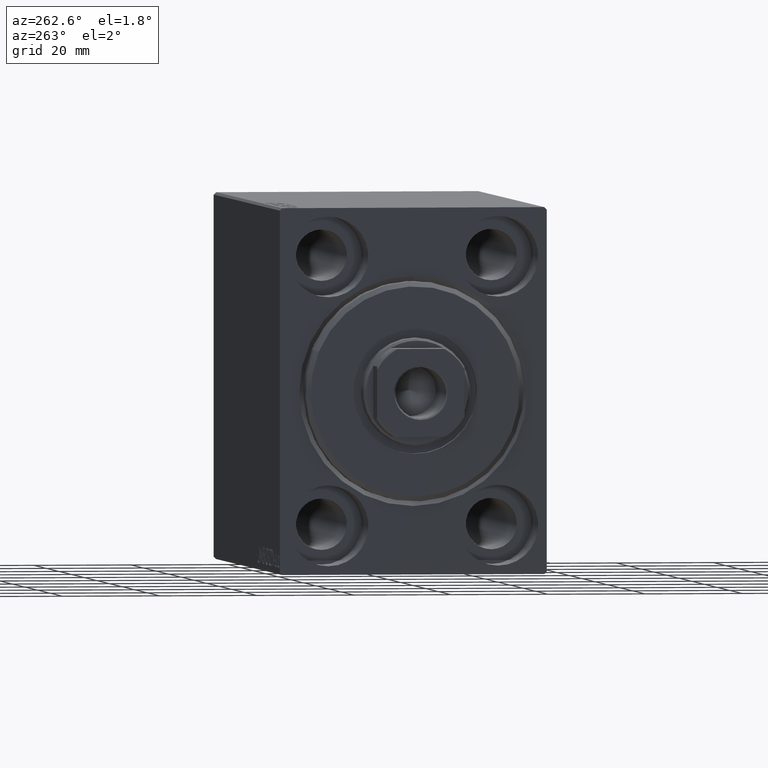
[diagram: clean part render]
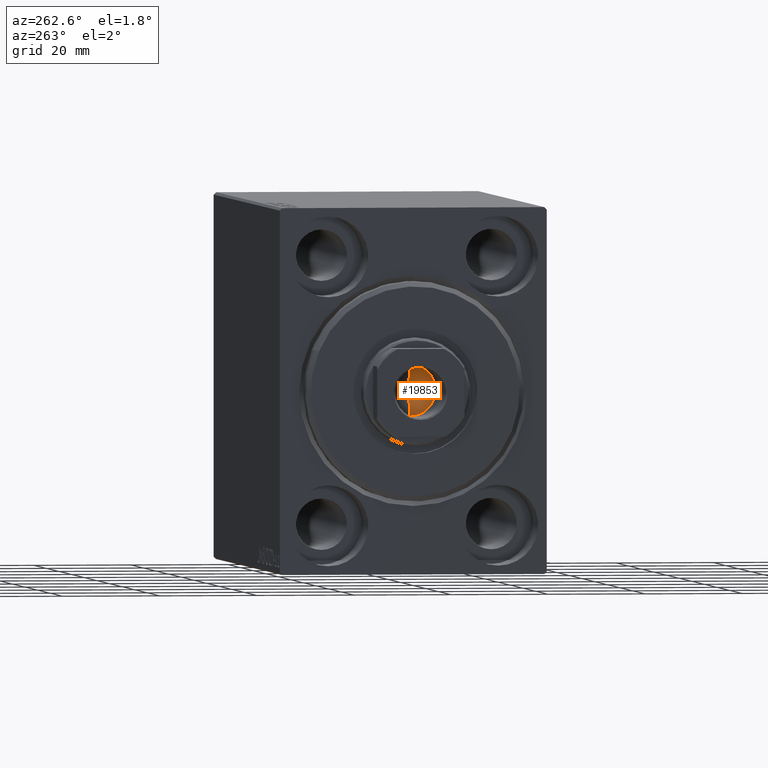
[diagram: same view with one face highlighted and labeled with its STEP entity id]
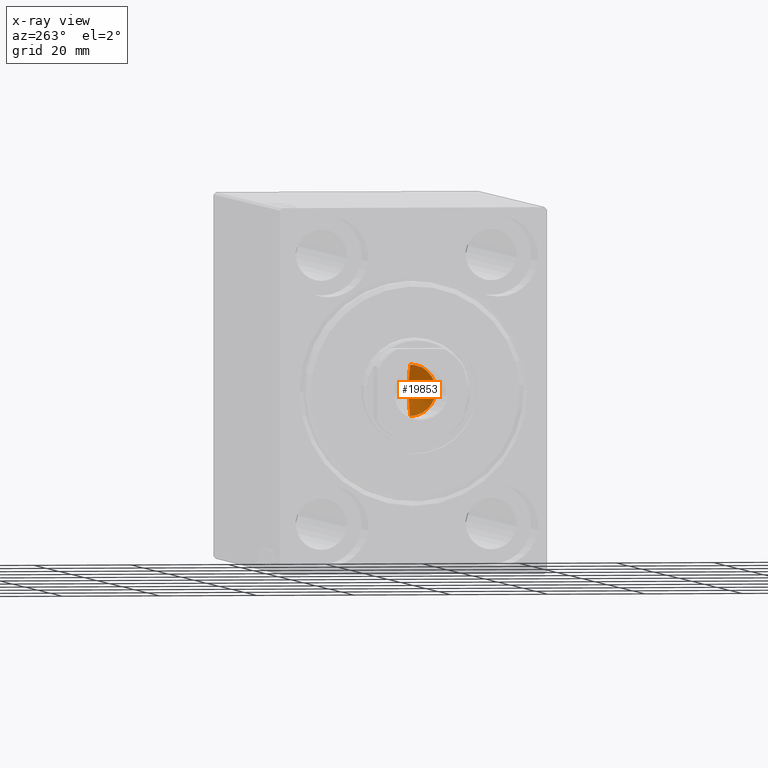
[diagram: x-ray of the same camera — body ghosted, the highlighted face saturated]
A machine part, auxiliary view. The second image highlights one B-rep face of the part: STEP entity #19853.
The next image is the same camera in x-ray: the body ghosted, the highlighted face saturated — about 0% of this face is hidden behind the body in this view.
In plain terms, the highlighted conical surface has half-angle 59 deg.
Its self-contained STEP definition (entity closure, byte-faithful):
#402 = DIRECTION ( 'NONE',  ( 1.000000000000000000, 0.000000000000000000, 0.000000000000000000 ) ) ;
#404 = LINE ( 'NONE', #11444, #9353 ) ;
#1742 = VERTEX_POINT ( 'NONE', #10890 ) ;
#2508 = ORIENTED_EDGE ( 'NONE', *, *, #5693, .F. ) ;
#2726 = EDGE_LOOP ( 'NONE', ( #2508, #33702, #21064 ) ) ;
#5307 = CARTESIAN_POINT ( 'NONE',  ( 0.000000000000000000, 0.000000000000000000, 90.00000000000001421 ) ) ;
#5693 = EDGE_CURVE ( 'NONE', #36464, #1742, #31420, .T. ) ;
#6639 = CARTESIAN_POINT ( 'NONE',  ( 0.000000000000000000, 0.000000000000000000, 90.00000000000001421 ) ) ;
#8048 = CARTESIAN_POINT ( 'NONE',  ( 5.249999999999995559, 0.000000000000000000, 90.00000000000001421 ) ) ;
#8439 = AXIS2_PLACEMENT_3D ( 'NONE', #6639, #10198, #402 ) ;
#9353 = VECTOR ( 'NONE', #14179, 1000.000000000000000 ) ;
#10198 = DIRECTION ( 'NONE',  ( -0.000000000000000000, -0.000000000000000000, 1.000000000000000000 ) ) ;
#10890 = CARTESIAN_POINT ( 'NONE',  ( 5.249999999999995559, 0.000000000000000000, 90.00000000000001421 ) ) ;
#11444 = CARTESIAN_POINT ( 'NONE',  ( -5.249999999999995559, 6.429395695523600208E-16, 90.00000000000001421 ) ) ;
#14179 = DIRECTION ( 'NONE',  ( -0.8571673007021115565, 1.049727191138617710E-16, 0.5150380749100554878 ) ) ;
#14794 = AXIS2_PLACEMENT_3D ( 'NONE', #5307, #21994, #31787 ) ;
#19447 = EDGE_CURVE ( 'NONE', #29665, #1742, #30479, .T. ) ;
#19853 = ADVANCED_FACE ( 'NONE', ( #26890 ), #33313, .F. ) ;
#21005 = VECTOR ( 'NONE', #34318, 1000.000000000000000 ) ;
#21064 = ORIENTED_EDGE ( 'NONE', *, *, #19447, .T. ) ;
#21994 = DIRECTION ( 'NONE',  ( -0.000000000000000000, -0.000000000000000000, 1.000000000000000000 ) ) ;
#26890 = FACE_OUTER_BOUND ( 'NONE', #2726, .T. ) ;
#29665 = VERTEX_POINT ( 'NONE', #37963 ) ;
#30479 = CIRCLE ( 'NONE', #14794, 5.249999999999995559 ) ;
#31420 = LINE ( 'NONE', #8048, #21005 ) ;
#31520 = EDGE_CURVE ( 'NONE', #36464, #29665, #404, .T. ) ;
#31787 = DIRECTION ( 'NONE',  ( 1.000000000000000000, 0.000000000000000000, 0.000000000000000000 ) ) ;
#33313 = CONICAL_SURFACE ( 'NONE', #8439, 5.249999999999995559, 1.029744258676652979 ) ;
#33702 = ORIENTED_EDGE ( 'NONE', *, *, #31520, .T. ) ;
#34318 = DIRECTION ( 'NONE',  ( 0.8571673007021115565, 0.000000000000000000, 0.5150380749100554878 ) ) ;
#36464 = VERTEX_POINT ( 'NONE', #37857 ) ;
#37857 = CARTESIAN_POINT ( 'NONE',  ( -4.624611670276745537E-15, 0.000000000000000000, 86.84548175010530713 ) ) ;
#37963 = CARTESIAN_POINT ( 'NONE',  ( -5.249999999999995559, 6.429395695523600208E-16, 90.00000000000001421 ) ) ;